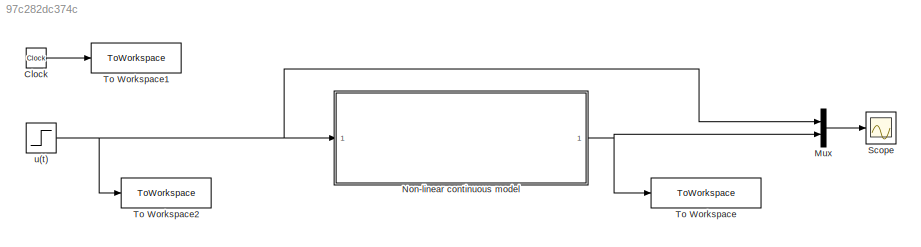
MODEL slx_97c282dc374c
KIND model
CONFIG AbsTol = auto
CONFIG EnableMultiTasking = off
CONFIG FixedStep = auto
CONFIG MaxStep = auto
CONFIG MinStep = auto
CONFIG RelTol = 1e-3
CONFIG SampleTimeConstraint = Unconstrained
CONFIG SolverName = VariableStepAuto
CONFIG StartTime = 0.0
CONFIG StopTime = t_fin
BLOCK [Clock] Clock
BLOCK [Mux] Mux
  DisplayOption = bar
  Inputs = 2
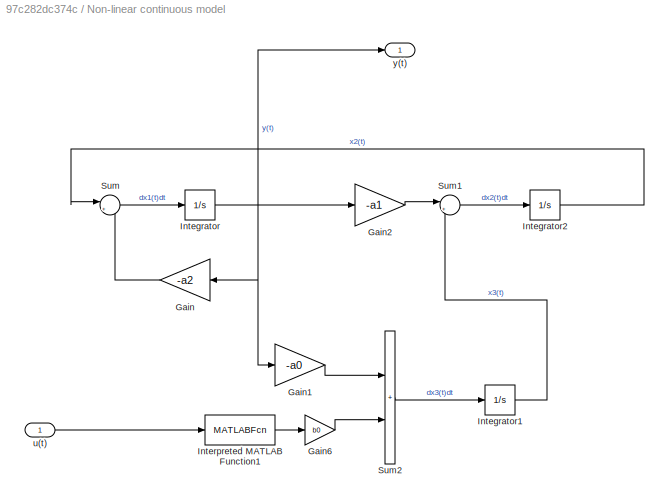
BLOCK [SubSystem] Non-linear continuous model
BLOCK [Gain] Non-linear continuous model/Gain
  Gain = -a2
  NameLocation = top
BLOCK [Gain] Non-linear continuous model/Gain1
  Gain = -a0
BLOCK [Gain] Non-linear continuous model/Gain2
  Gain = -a1
BLOCK [Gain] Non-linear continuous model/Gain6
  Gain = b0
BLOCK [Integrator] Non-linear continuous model/Integrator
BLOCK [Integrator] Non-linear continuous model/Integrator1
BLOCK [Integrator] Non-linear continuous model/Integrator2
BLOCK [MATLABFcn] Non-linear continuous model/Interpreted MATLAB Function1
  MATLABFcn = (alpha1*u + alpha2*u^2 + alpha3*u^3 + alpha4*u^4)
BLOCK [Sum] Non-linear continuous model/Sum
  Inputs = |++
BLOCK [Sum] Non-linear continuous model/Sum1
  Inputs = |++
BLOCK [Sum] Non-linear continuous model/Sum2
  IconShape = rectangular
BLOCK [Inport] Non-linear continuous model/u(t)
BLOCK [Outport] Non-linear continuous model/y(t)
BLOCK [Scope] Scope
  Floating = off
  NumInputPorts = 1
  ScopeSpecificationString = Simulink.scopes.TimeScopeBlockCfg('CurrentConfiguration', extmgr.ConfigurationSet(extmgr.Configuration('Core','General UI',true),extmgr.Configuration('Core','Source UI',true),extmgr.Configuration('Sources','WiredSimulink',true),extmgr.Configuration('Visuals','Time Domain',true,'SerializedDisplays',{struct('MinYLimReal','-0.60419','MaxYLimReal','4.65296','YLabelReal','','MinYLimMag','0.00000','MaxY...<+1427ch>
BLOCK [ToWorkspace] To Workspace
  FixptAsFi = on
  MaxDataPoints = inf
  SampleTime = -1
  SaveFormat = Timeseries
  VariableName = y_non_linear
BLOCK [ToWorkspace] To Workspace1
  FixptAsFi = on
  MaxDataPoints = inf
  SampleTime = -1
  SaveFormat = Timeseries
  VariableName = t_non_linear
BLOCK [ToWorkspace] To Workspace2
  FixptAsFi = on
  MaxDataPoints = inf
  SampleTime = -1
  SaveFormat = Timeseries
  VariableName = u_non_linear
BLOCK [Step] u(t)
  After = u_max
  Before = u_min
  SampleTime = 0
  Time = u_step_time
LINE Clock:1 -> To Workspace1:1
LINE Mux:1 -> Scope:1
LINE Non-linear continuous model/Gain1:1 -> Non-linear continuous model/Sum2:1
LINE Non-linear continuous model/Gain2:1 -> Non-linear continuous model/Sum1:1
LINE Non-linear continuous model/Gain6:1 -> Non-linear continuous model/Sum2:2
LINE Non-linear continuous model/Gain:1 -> Non-linear continuous model/Sum:2
LINE Non-linear continuous model/Integrator1:1 -> Non-linear continuous model/Sum1:2
LINE Non-linear continuous model/Integrator2:1 -> Non-linear continuous model/Sum:1
NET Non-linear continuous model/Integrator:1 -> Non-linear continuous model/Gain1:1, Non-linear continuous model/Gain2:1, Non-linear continuous model/Gain:1, Non-linear continuous model/y(t):1
LINE Non-linear continuous model/Interpreted MATLAB Function1:1 -> Non-linear continuous model/Gain6:1
LINE Non-linear continuous model/Sum1:1 -> Non-linear continuous model/Integrator2:1
LINE Non-linear continuous model/Sum2:1 -> Non-linear continuous model/Integrator1:1
LINE Non-linear continuous model/Sum:1 -> Non-linear continuous model/Integrator:1
LINE Non-linear continuous model/u(t):1 -> Non-linear continuous model/Interpreted MATLAB Function1:1
NET Non-linear continuous model:1 -> Mux:2, To Workspace:1
NET u(t):1 -> Mux:1, Non-linear continuous model:1, To Workspace2:1
note: NET lines group one-source signal fan-out (src -> all destinations, sorted); 1:1 wires keep LINE
